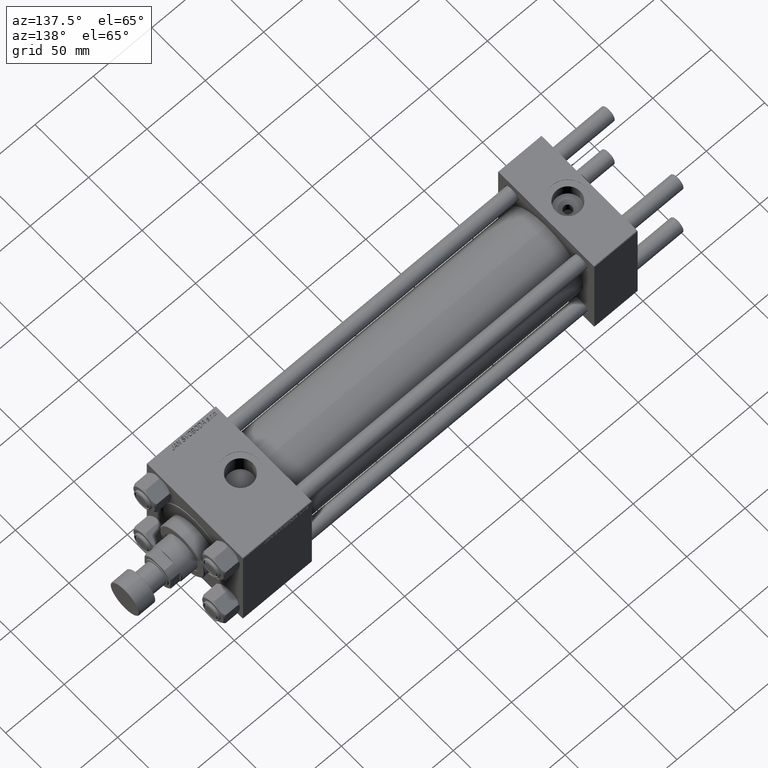
[diagram: clean part render]
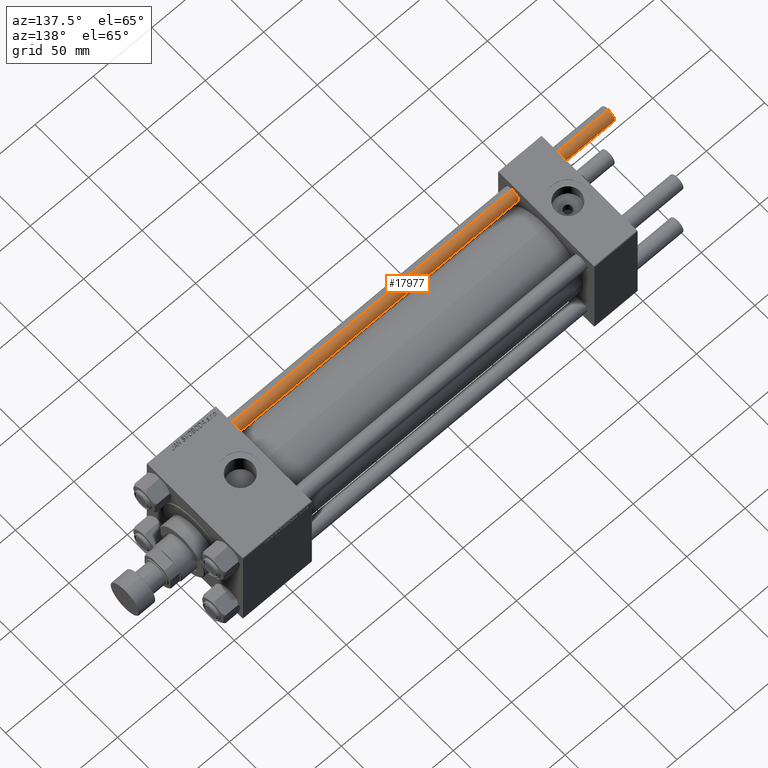
[diagram: same view with one face highlighted and labeled with its STEP entity id]
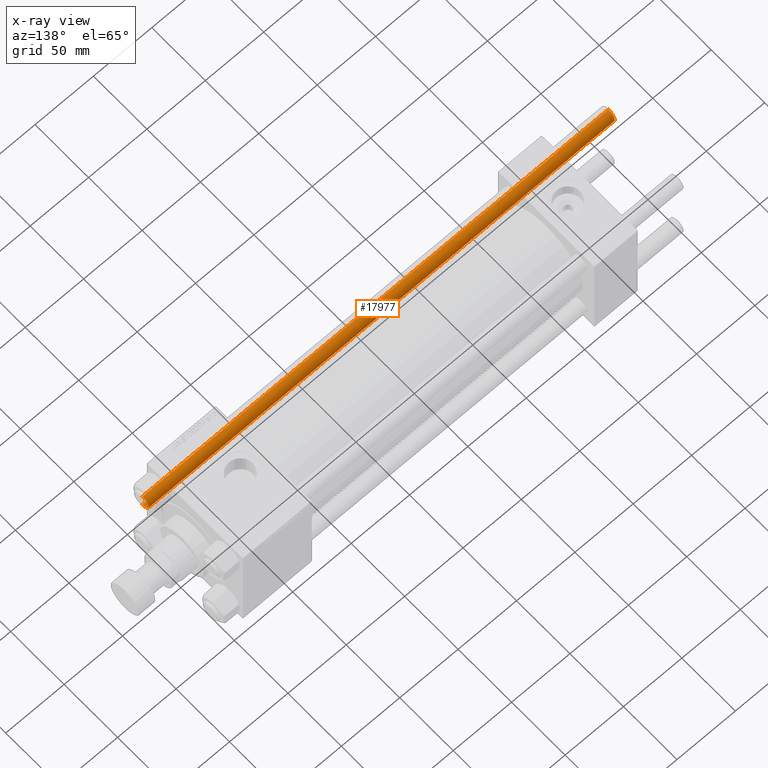
[diagram: x-ray of the same camera — body ghosted, the highlighted face saturated]
A machine part, auxiliary view. The second image highlights one B-rep face of the part: STEP entity #17977.
The next image is the same camera in x-ray: the body ghosted, the highlighted face saturated — about 0% of this face is hidden behind the body in this view.
In plain terms, the highlighted cylindrical surface (edge-blend (fillet) strip) has radius 6 mm, axis along (1, -0, 0).
Its self-contained STEP definition (entity closure, byte-faithful):
#1877 = EDGE_CURVE ( 'NONE', #40832, #13497, #8719, .T. ) ;
#2171 = ORIENTED_EDGE ( 'NONE', *, *, #1877, .T. ) ;
#2324 = VECTOR ( 'NONE', #48923, 1000.000000000000000 ) ;
#5380 = EDGE_CURVE ( 'NONE', #40832, #17504, #48424, .T. ) ;
#5912 = FACE_OUTER_BOUND ( 'NONE', #13987, .T. ) ;
#5990 = CARTESIAN_POINT ( 'NONE',  ( 6.000000000000000888, 7.347880794884120722E-16, 400.0000000000000000 ) ) ;
#6394 = DIRECTION ( 'NONE',  ( -1.000000000000000000, 0.000000000000000000, 0.000000000000000000 ) ) ;
#7726 = CIRCLE ( 'NONE', #16636, 6.000000000000000888 ) ;
#8371 = CARTESIAN_POINT ( 'NONE',  ( -6.000000000000000888, 0.000000000000000000, 400.0000000000000000 ) ) ;
#8630 = CARTESIAN_POINT ( 'NONE',  ( 6.000000000000000888, 7.347880794884120722E-16, 0.5000000000000004441 ) ) ;
#8719 = CIRCLE ( 'NONE', #24965, 6.000000000000000888 ) ;
#12286 = ORIENTED_EDGE ( 'NONE', *, *, #42449, .T. ) ;
#12485 = VERTEX_POINT ( 'NONE', #21336 ) ;
#13497 = VERTEX_POINT ( 'NONE', #18390 ) ;
#13987 = EDGE_LOOP ( 'NONE', ( #50209, #2171, #45326, #12286 ) ) ;
#15001 = DIRECTION ( 'NONE',  ( 0.000000000000000000, 0.000000000000000000, -1.000000000000000000 ) ) ;
#16636 = AXIS2_PLACEMENT_3D ( 'NONE', #30912, #34227, #49494 ) ;
#17504 = VERTEX_POINT ( 'NONE', #8630 ) ;
#17977 = ADVANCED_FACE ( 'NONE', ( #5912 ), #29020, .T. ) ;
#18390 = CARTESIAN_POINT ( 'NONE',  ( -6.000000000000000888, 0.000000000000000000, 399.5000000000000000 ) ) ;
#18556 = DIRECTION ( 'NONE',  ( 1.000000000000000000, 0.000000000000000000, 0.000000000000000000 ) ) ;
#18854 = EDGE_CURVE ( 'NONE', #13497, #12485, #46999, .T. ) ;
#21336 = CARTESIAN_POINT ( 'NONE',  ( -6.000000000000000888, 0.000000000000000000, 0.5000000000000004441 ) ) ;
#24965 = AXIS2_PLACEMENT_3D ( 'NONE', #46765, #15001, #18556 ) ;
#25205 = DIRECTION ( 'NONE',  ( -0.000000000000000000, -0.000000000000000000, -1.000000000000000000 ) ) ;
#29020 = CYLINDRICAL_SURFACE ( 'NONE', #44007, 6.000000000000000888 ) ;
#29858 = CARTESIAN_POINT ( 'NONE',  ( 6.000000000000000888, 7.347880794884120722E-16, 399.5000000000000000 ) ) ;
#30912 = CARTESIAN_POINT ( 'NONE',  ( 0.000000000000000000, 0.000000000000000000, 0.5000000000000004441 ) ) ;
#34227 = DIRECTION ( 'NONE',  ( -0.000000000000000000, -0.000000000000000000, 1.000000000000000000 ) ) ;
#37369 = CARTESIAN_POINT ( 'NONE',  ( 0.000000000000000000, 0.000000000000000000, 400.0000000000000000 ) ) ;
#40832 = VERTEX_POINT ( 'NONE', #29858 ) ;
#42449 = EDGE_CURVE ( 'NONE', #12485, #17504, #7726, .T. ) ;
#42666 = DIRECTION ( 'NONE',  ( -0.000000000000000000, -0.000000000000000000, -1.000000000000000000 ) ) ;
#44007 = AXIS2_PLACEMENT_3D ( 'NONE', #37369, #25205, #6394 ) ;
#44046 = VECTOR ( 'NONE', #42666, 1000.000000000000000 ) ;
#45326 = ORIENTED_EDGE ( 'NONE', *, *, #18854, .T. ) ;
#46765 = CARTESIAN_POINT ( 'NONE',  ( 0.000000000000000000, 0.000000000000000000, 399.5000000000000000 ) ) ;
#46999 = LINE ( 'NONE', #8371, #44046 ) ;
#48424 = LINE ( 'NONE', #5990, #2324 ) ;
#48923 = DIRECTION ( 'NONE',  ( -0.000000000000000000, -0.000000000000000000, -1.000000000000000000 ) ) ;
#49494 = DIRECTION ( 'NONE',  ( 1.000000000000000000, 0.000000000000000000, 0.000000000000000000 ) ) ;
#50209 = ORIENTED_EDGE ( 'NONE', *, *, #5380, .F. ) ;